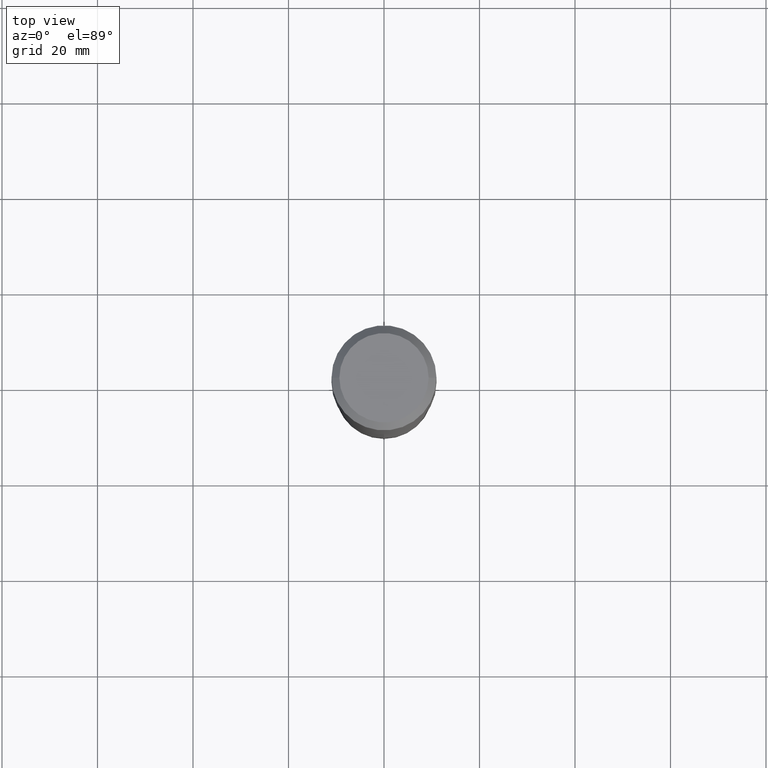
[diagram: clean part render]
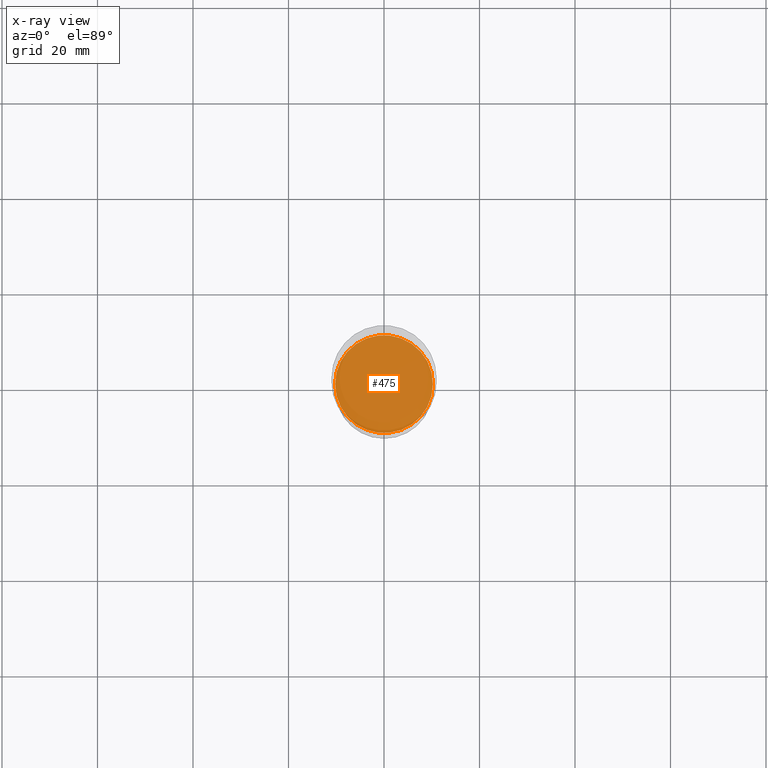
[diagram: x-ray — body ghosted, one internal face saturated and labeled with its STEP entity id]
A machine part, top view, then the same camera in x-ray: the body is ghosted and one INTERNAL B-rep face — a face not visible from any outside direction — is saturated and labeled: STEP entity #475.
In plain terms, the highlighted planar face has unit normal (-0, 0, 1).
Its self-contained STEP definition (entity closure, byte-faithful):
#37 = ORIENTED_EDGE ( 'NONE', *, *, #163, .F. ) ;
#52 = CARTESIAN_POINT ( 'NONE',  ( -0.4030499999999999639, -7.786716137423011070E-15, -3.051200000000000134 ) ) ;
#53 = CARTESIAN_POINT ( 'NONE',  ( 7.461614421432089568E-29, -1.065320786107820621E-14, -3.051200000000000134 ) ) ;
#58 = VERTEX_POINT ( 'NONE', #52 ) ;
#95 = CIRCLE ( 'NONE', #150, 0.4030499999999999639 ) ;
#100 = AXIS2_PLACEMENT_3D ( 'NONE', #197, #350, #313 ) ;
#111 = EDGE_LOOP ( 'NONE', ( #190, #37 ) ) ;
#139 = DIRECTION ( 'NONE',  ( 1.000000000000000000, -6.982962677686266711E-15, 0.000000000000000000 ) ) ;
#150 = AXIS2_PLACEMENT_3D ( 'NONE', #482, #372, #139 ) ;
#163 = EDGE_CURVE ( 'NONE', #58, #306, #95, .T. ) ;
#190 = ORIENTED_EDGE ( 'NONE', *, *, #253, .F. ) ;
#197 = CARTESIAN_POINT ( 'NONE',  ( 7.461614421432089568E-29, -1.065320786107820621E-14, -3.051200000000000134 ) ) ;
#202 = CIRCLE ( 'NONE', #100, 0.4030499999999999639 ) ;
#212 = DIRECTION ( 'NONE',  ( -2.438088387897960049E-29, 3.491481338843145188E-15, 1.000000000000000000 ) ) ;
#253 = EDGE_CURVE ( 'NONE', #306, #58, #202, .T. ) ;
#254 = FACE_OUTER_BOUND ( 'NONE', #111, .T. ) ;
#275 = CARTESIAN_POINT ( 'NONE',  ( 0.4030499999999999639, -1.346769096831965602E-14, -3.051200000000000134 ) ) ;
#306 = VERTEX_POINT ( 'NONE', #275 ) ;
#313 = DIRECTION ( 'NONE',  ( 1.000000000000000000, -6.982962677686266711E-15, 0.000000000000000000 ) ) ;
#350 = DIRECTION ( 'NONE',  ( -2.445468806185136597E-29, 3.491481338843145583E-15, 1.000000000000000000 ) ) ;
#372 = DIRECTION ( 'NONE',  ( -2.445468806185136597E-29, 3.491481338843145583E-15, 1.000000000000000000 ) ) ;
#401 = PLANE ( 'NONE',  #405 ) ;
#405 = AXIS2_PLACEMENT_3D ( 'NONE', #53, #212, #448 ) ;
#448 = DIRECTION ( 'NONE',  ( 1.000000000000000000, -6.982962677686265922E-15, 4.876176775795935793E-29 ) ) ;
#475 = ADVANCED_FACE ( 'NONE', ( #254 ), #401, .F. ) ;
#482 = CARTESIAN_POINT ( 'NONE',  ( 7.461614421432089568E-29, -1.065320786107820621E-14, -3.051200000000000134 ) ) ;